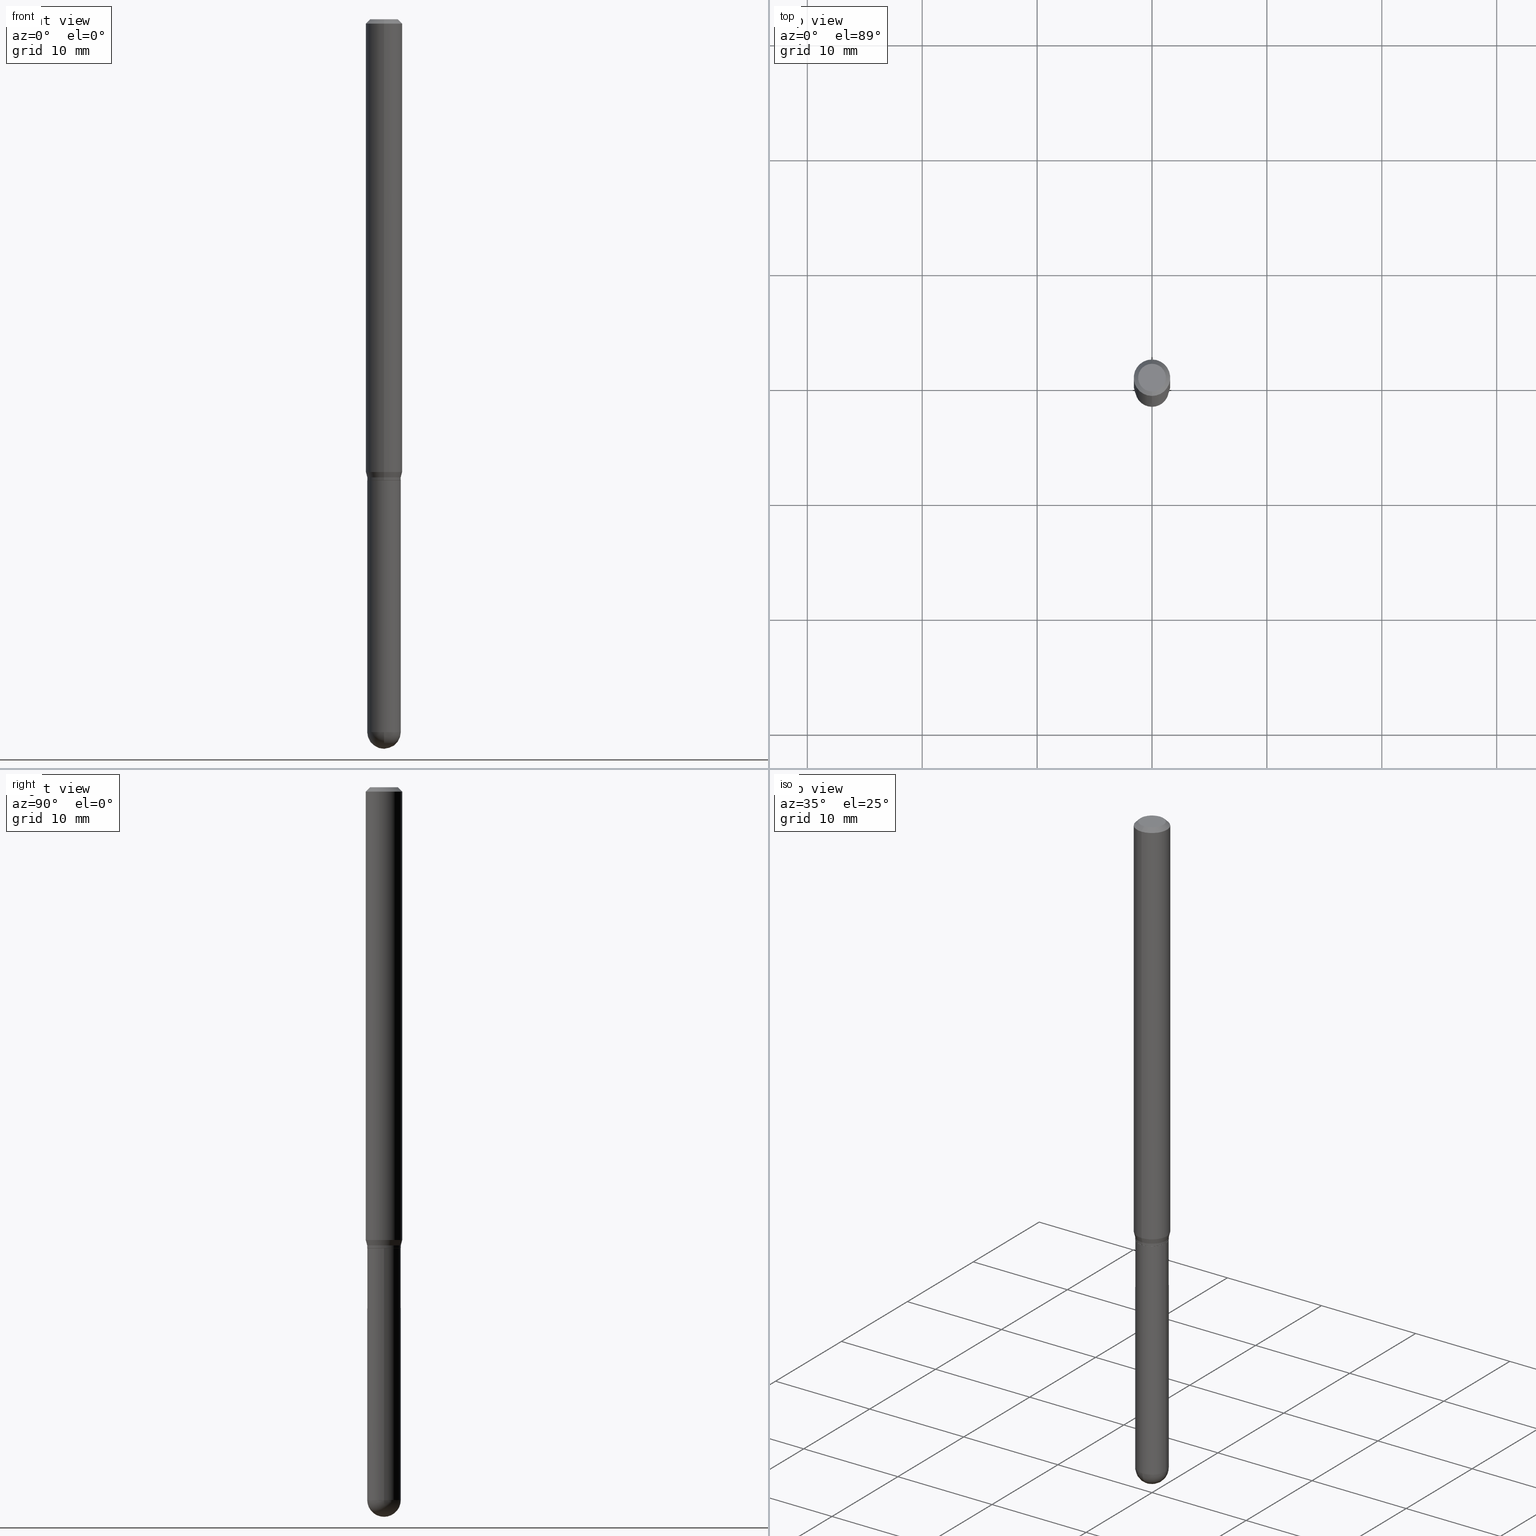
[diagram: canonical four-view strip — front | top / right | iso, engineering-drawing reading convention]
A machine part, canonical four-view strip (front | top / right | iso — engineering-drawing reading convention). The complete STEP part file that produces these views, byte-faithful:
ISO-10303-21;
HEADER;
FILE_DESCRIPTION (( 'STEP AP203' ),
    '1' );
FILE_NAME ('01004.STEP',
    '2024-03-07T19:40:38',
    ( '' ),
    ( '' ),
    'SwSTEP 2.0',
    'SolidWorks 2023',
    '' );
FILE_SCHEMA (( 'CONFIG_CONTROL_DESIGN' ));
ENDSEC;

DATA;
#1 = DIRECTION ( 'NONE',  ( -2.445559636082380444E-29, 3.491351265260575738E-15, 1.000000000000000000 ) ) ;
#2 = ORIENTED_EDGE ( 'NONE', *, *, #239, .F. ) ;
#3 = APPROVAL_DATE_TIME ( #238, #248 ) ;
#4 = DIRECTION ( 'NONE',  ( -2.445559636082380444E-29, 3.491351265260575738E-15, 1.000000000000000000 ) ) ;
#5 = LINE ( 'NONE', #168, #262 ) ;
#6 = AXIS2_PLACEMENT_3D ( 'NONE', #333, #491, #452 ) ;
#7 = AXIS2_PLACEMENT_3D ( 'NONE', #485, #64, #208 ) ;
#8 = DIRECTION ( 'NONE',  ( 1.000000000000000000, -6.982962677686265922E-15, 4.876176775795935232E-29 ) ) ;
#9 = EDGE_LOOP ( 'NONE', ( #494, #468, #295, #37 ) ) ;
#10 = CARTESIAN_POINT ( 'NONE',  ( 3.668339454123573048E-31, -5.237026897890866417E-17, -0.01500000000000000812 ) ) ;
#11 = DIRECTION ( 'NONE',  ( -2.445559636082380444E-29, 3.491351265260575738E-15, 1.000000000000000000 ) ) ;
#12 = VERTEX_POINT ( 'NONE', #148 ) ;
#13 = DIRECTION ( 'NONE',  ( -1.807323732225508027E-15, -0.2588190451025436656, 0.9659258262890620950 ) ) ;
#14 = ORIENTED_EDGE ( 'NONE', *, *, #303, .T. ) ;
#15 = LOCAL_TIME ( 14, 40, 38.00000000000000000, #320 ) ;
#16 = ORIENTED_EDGE ( 'NONE', *, *, #305, .F. ) ;
#17 = CLOSED_SHELL ( 'NONE', ( #405, #60, #19, #80, #457 ) ) ;
#18 = AXIS2_PLACEMENT_3D ( 'NONE', #355, #138, #51 ) ;
#19 = ADVANCED_FACE ( 'NONE', ( #71 ), #221, .F. ) ;
#20 = DIRECTION ( 'NONE',  ( 1.000000000000000000, -6.982962677686273810E-15, 0.000000000000000000 ) ) ;
#21 = DIRECTION ( 'NONE',  ( -4.937700262167370586E-15, -0.7071067811869493624, 0.7071067811861454500 ) ) ;
#22 = ORIENTED_EDGE ( 'NONE', *, *, #210, .F. ) ;
#23 = VERTEX_POINT ( 'NONE', #66 ) ;
#24 = ORIENTED_EDGE ( 'NONE', *, *, #246, .T. ) ;
#25 = ADVANCED_FACE ( 'NONE', ( #458 ), #376, .F. ) ;
#26 = CIRCLE ( 'NONE', #153, 0.05700000000000000205 ) ;
#27 = AXIS2_PLACEMENT_3D ( 'NONE', #301, #253, #62 ) ;
#28 = CIRCLE ( 'NONE', #7, 0.05750000000000019679 ) ;
#29 = ADVANCED_FACE ( 'NONE', ( #289 ), #258, .T. ) ;
#30 = PLANE ( 'NONE',  #77 ) ;
#31 = CC_DESIGN_PERSON_AND_ORGANIZATION_ASSIGNMENT ( #399, #50, ( #232 ) ) ;
#32 = VERTEX_POINT ( 'NONE', #380 ) ;
#33 = MANIFOLD_SOLID_BREP ( 'Body-Move/Copy2[1]', #17 ) ;
#34 = CALENDAR_DATE ( 2024, 7, 3 ) ;
#35 = ORIENTED_EDGE ( 'NONE', *, *, #255, .T. ) ;
#36 = DIRECTION ( 'NONE',  ( 1.000000000000000000, -6.982962677686273810E-15, 0.000000000000000000 ) ) ;
#37 = ORIENTED_EDGE ( 'NONE', *, *, #96, .F. ) ;
#38 = CARTESIAN_POINT ( 'NONE',  ( 5.968140352944414042E-29, -8.534984889219480121E-15, -2.442499999999999893 ) ) ;
#39 = APPROVAL_STATUS ( 'not_yet_approved' ) ;
#40 = DIRECTION ( 'NONE',  ( 4.937700262164548042E-15, 0.7071067811865451302, -0.7071067811865499042 ) ) ;
#41 = CARTESIAN_POINT ( 'NONE',  ( 0.000000000000000000, 0.000000000000000000, 0.000000000000000000 ) ) ;
#42 = AXIS2_PLACEMENT_3D ( 'NONE', #48, #482, #204 ) ;
#43 = ORIENTED_EDGE ( 'NONE', *, *, #109, .T. ) ;
#44 = APPROVAL_ROLE ( '' ) ;
#45 = DIRECTION ( 'NONE',  ( -2.445468806185136597E-29, 3.491481338843145583E-15, 1.000000000000000000 ) ) ;
#46 = EDGE_CURVE ( 'NONE', #299, #439, #379, .T. ) ;
#47 = CARTESIAN_POINT ( 'NONE',  ( 4.440892098501006787E-16, 0.06249999999999460154, -1.551339745962156513 ) ) ;
#48 = CARTESIAN_POINT ( 'NONE',  ( 3.863984225010160714E-29, -5.516334999111708829E-15, -1.579999999999999849 ) ) ;
#49 = ORIENTED_EDGE ( 'NONE', *, *, #192, .T. ) ;
#50 = PERSON_AND_ORGANIZATION_ROLE ( 'design_supplier' ) ;
#51 = DIRECTION ( 'NONE',  ( -6.982962677686266711E-15, -1.000000000000000000, 3.491351265260575738E-15 ) ) ;
#52 = CARTESIAN_POINT ( 'NONE',  ( 3.839528628649336660E-29, -5.481421486459103522E-15, -1.569999999999999840 ) ) ;
#53 = AXIS2_PLACEMENT_3D ( 'NONE', #322, #447, #252 ) ;
#54 = AXIS2_PLACEMENT_3D ( 'NONE', #315, #472, #190 ) ;
#55 = CC_DESIGN_PERSON_AND_ORGANIZATION_ASSIGNMENT ( #307, #430, ( #508 ) ) ;
#56 = APPLICATION_PROTOCOL_DEFINITION ( 'international standard', 'config_control_design', 1994, #406 ) ;
#57 = DIRECTION ( 'NONE',  ( -2.445559636082380444E-29, 3.491351265260575738E-15, 1.000000000000000000 ) ) ;
#58 = CARTESIAN_POINT ( 'NONE',  ( 3.862761445192120857E-29, -5.514589323479080576E-15, -1.579500000000000126 ) ) ;
#59 = ORIENTED_EDGE ( 'NONE', *, *, #352, .T. ) ;
#60 = ADVANCED_FACE ( 'NONE', ( #144 ), #415, .T. ) ;
#61 = DIRECTION ( 'NONE',  ( -2.445559636082380444E-29, 3.491351265260575738E-15, 1.000000000000000000 ) ) ;
#62 = DIRECTION ( 'NONE',  ( 6.982962677686265922E-15, 1.000000000000000000, -3.491351265260575738E-15 ) ) ;
#63 = LINE ( 'NONE', #481, #339 ) ;
#64 = DIRECTION ( 'NONE',  ( -2.445559636082380444E-29, 3.491351265260575738E-15, 1.000000000000000000 ) ) ;
#65 = MECHANICAL_CONTEXT ( 'NONE', #406, 'mechanical' ) ;
#66 = CARTESIAN_POINT ( 'NONE',  ( 4.085620730620980537E-16, 0.05749999999999475669, -1.579500000000000348 ) ) ;
#67 = CC_DESIGN_SECURITY_CLASSIFICATION ( #508, ( #232 ) ) ;
#68 = CIRCLE ( 'NONE', #257, 0.05750000000000007189 ) ;
#69 = ORIENTED_EDGE ( 'NONE', *, *, #201, .T. ) ;
#70 = DIRECTION ( 'NONE',  ( 6.982962677686266711E-15, 1.000000000000000000, -4.751039988981321814E-15 ) ) ;
#71 = FACE_OUTER_BOUND ( 'NONE', #105, .T. ) ;
#72 = EDGE_LOOP ( 'NONE', ( #456, #277, #35, #296, #200 ) ) ;
#73 = CONICAL_SURFACE ( 'NONE', #345, 0.05749999999999964861, 0.2617993877991766638 ) ;
#74 = APPROVAL_ROLE ( '' ) ;
#75 = DIRECTION ( 'NONE',  ( -6.982962677686265922E-15, -1.000000000000000000, 3.491351265260575738E-15 ) ) ;
#76 = AXIS2_PLACEMENT_3D ( 'NONE', #218, #477, #435 ) ;
#77 = AXIS2_PLACEMENT_3D ( 'NONE', #151, #245, #404 ) ;
#78 = DATE_AND_TIME ( #357, #453 ) ;
#79 = CARTESIAN_POINT ( 'NONE',  ( 3.668339454123573048E-31, -5.237026897890866417E-17, -0.01500000000000000812 ) ) ;
#80 = ADVANCED_FACE ( 'NONE', ( #486 ), #101, .T. ) ;
#81 = CALENDAR_DATE ( 2024, 7, 3 ) ;
#82 = ORIENTED_EDGE ( 'NONE', *, *, #46, .F. ) ;
#83 = CARTESIAN_POINT ( 'NONE',  ( 2.168354983497660844E-46, -3.095605931448901253E-32, -8.866498087003175706E-18 ) ) ;
#84 = DATE_AND_TIME ( #34, #378 ) ;
#85 = AXIS2_PLACEMENT_3D ( 'NONE', #323, #400, #326 ) ;
#86 = CARTESIAN_POINT ( 'NONE',  ( 5.968140352944414042E-29, -8.534984889219480121E-15, -2.442499999999999893 ) ) ;
#87 = COORDINATED_UNIVERSAL_TIME_OFFSET ( 5, 0, .BEHIND. ) ;
#88 = DIRECTION ( 'NONE',  ( -6.982962677686265922E-15, -1.000000000000000000, 3.483106191921935554E-15 ) ) ;
#89 = DIRECTION ( 'NONE',  ( 1.000000000000000000, 0.000000000000000000, 0.000000000000000000 ) ) ;
#90 = DIRECTION ( 'NONE',  ( 6.982962677686265922E-15, 1.000000000000000000, 0.000000000000000000 ) ) ;
#91 = PERSON_AND_ORGANIZATION ( #503, #280 ) ;
#92 = DIRECTION ( 'NONE',  ( -2.445468806185136877E-29, 3.491481338843145188E-15, 1.000000000000000000 ) ) ;
#93 = LINE ( 'NONE', #431, #402 ) ;
#94 = APPROVAL ( #507, 'UNSPECIFIED' ) ;
#95 = FACE_OUTER_BOUND ( 'NONE', #72, .T. ) ;
#96 = EDGE_CURVE ( 'NONE', #250, #459, #136, .T. ) ;
#97 = APPROVAL_PERSON_ORGANIZATION ( #91, #94, #44 ) ;
#98 = AXIS2_PLACEMENT_3D ( 'NONE', #408, #173, #219 ) ;
#99 = VECTOR ( 'NONE', #40, 39.37007874015748143 ) ;
#100 = LINE ( 'NONE', #434, #154 ) ;
#101 = SPHERICAL_SURFACE ( 'NONE', #312, 0.05750000000000007189 ) ;
#102 = CARTESIAN_POINT ( 'NONE',  ( 3.793893864575343758E-29, -5.416271984913994824E-15, -1.551339745962156291 ) ) ;
#103 = CARTESIAN_POINT ( 'NONE',  ( -3.980288726280785069E-16, -0.05700000000000551154, -1.579999999999999627 ) ) ;
#104 = ADVANCED_FACE ( 'NONE', ( #180 ), #225, .T. ) ;
#105 = EDGE_LOOP ( 'NONE', ( #337, #43 ) ) ;
#106 = APPROVAL_PERSON_ORGANIZATION ( #344, #429, #74 ) ;
#107 = AXIS2_PLACEMENT_3D ( 'NONE', #79, #282, #403 ) ;
#108 = ORIENTED_EDGE ( 'NONE', *, *, #214, .T. ) ;
#109 = EDGE_CURVE ( 'NONE', #237, #382, #297, .T. ) ;
#110 = CARTESIAN_POINT ( 'NONE',  ( 3.863984225010160714E-29, -5.516334999111708829E-15, -1.579999999999999849 ) ) ;
#111 = CARTESIAN_POINT ( 'NONE',  ( 0.000000000000000000, 0.000000000000000000, 0.000000000000000000 ) ) ;
#112 = ORIENTED_EDGE ( 'NONE', *, *, #427, .T. ) ;
#113 = AXIS2_PLACEMENT_3D ( 'NONE', #276, #470, #438 ) ;
#114 = ADVANCED_FACE ( 'NONE', ( #126 ), #465, .T. ) ;
#115 = COORDINATED_UNIVERSAL_TIME_OFFSET ( 5, 0, .BEHIND. ) ;
#116 = CARTESIAN_POINT ( 'NONE',  ( 4.364351673553919652E-16, 0.06249999999999995143, -0.01500000000000022669 ) ) ;
#117 = ORIENTED_EDGE ( 'NONE', *, *, #462, .F. ) ;
#118 = CALENDAR_DATE ( 2024, 7, 3 ) ;
#119 = CARTESIAN_POINT ( 'NONE',  ( 4.067857162226966677E-16, 0.05699999999999448563, -1.580000000000000071 ) ) ;
#120 = AXIS2_PLACEMENT_3D ( 'NONE', #41, #164, #89 ) ;
#121 = EDGE_LOOP ( 'NONE', ( #213, #374, #182, #489 ) ) ;
#122 = VERTEX_POINT ( 'NONE', #235 ) ;
#123 = PRODUCT_DEFINITION ( 'UNKNOWN', '', #232, #389 ) ;
#124 = DIRECTION ( 'NONE',  ( -6.982962677686265922E-15, -1.000000000000000000, 3.483106191921935554E-15 ) ) ;
#125 = CARTESIAN_POINT ( 'NONE',  ( 3.840629472727447874E-16, 0.04749999999999999362, -1.747056831868805136E-16 ) ) ;
#126 = FACE_OUTER_BOUND ( 'NONE', #9, .T. ) ;
#127 = PERSON_AND_ORGANIZATION ( #503, #280 ) ;
#128 = CARTESIAN_POINT ( 'NONE',  ( 4.440892098500625669E-16, 0.06250000000000000000, -2.182094540787859836E-16 ) ) ;
#129 = VECTOR ( 'NONE', #1, 39.37007874015748143 ) ;
#130 = ORIENTED_EDGE ( 'NONE', *, *, #460, .F. ) ;
#131 = DIRECTION ( 'NONE',  ( -2.445559636082380444E-29, 3.491351265260575738E-15, 1.000000000000000000 ) ) ;
#132 = CYLINDRICAL_SURFACE ( 'NONE', #147, 0.06250000000000000000 ) ;
#133 = LINE ( 'NONE', #483, #222 ) ;
#134 = ADVANCED_FACE ( 'NONE', ( #324 ), #328, .T. ) ;
#135 = CARTESIAN_POINT ( 'NONE',  ( -4.085620730619980656E-16, -0.05750000000000857203, -2.442499999999999893 ) ) ;
#136 = LINE ( 'NONE', #103, #412 ) ;
#137 = CIRCLE ( 'NONE', #298, 0.06250000000000000000 ) ;
#138 = DIRECTION ( 'NONE',  ( -2.445559636082380444E-29, 3.491351265260575738E-15, 1.000000000000000000 ) ) ;
#139 = EDGE_CURVE ( 'NONE', #299, #12, #5, .T. ) ;
#140 = EDGE_LOOP ( 'NONE', ( #366, #446 ) ) ;
#141 = DIRECTION ( 'NONE',  ( -1.000000000000000000, 6.982962677686266711E-15, -4.883557194083112901E-29 ) ) ;
#142 = EDGE_CURVE ( 'NONE', #505, #439, #93, .T. ) ;
#143 = ORIENTED_EDGE ( 'NONE', *, *, #266, .F. ) ;
#144 = FACE_OUTER_BOUND ( 'NONE', #264, .T. ) ;
#145 = EDGE_CURVE ( 'NONE', #442, #505, #271, .T. ) ;
#146 = ORIENTED_EDGE ( 'NONE', *, *, #217, .F. ) ;
#147 = AXIS2_PLACEMENT_3D ( 'NONE', #409, #57, #167 ) ;
#148 = CARTESIAN_POINT ( 'NONE',  ( -4.364351673553912750E-16, -0.06250000000000005551, -0.01499999999999979128 ) ) ;
#149 = DIRECTION ( 'NONE',  ( -2.445559636082380444E-29, 3.491351265260575738E-15, 1.000000000000000000 ) ) ;
#150 = EDGE_LOOP ( 'NONE', ( #2, #108, #224, #493 ) ) ;
#151 = CARTESIAN_POINT ( 'NONE',  ( 3.863984225010161275E-29, -5.516334999111708829E-15, -1.580000000000000071 ) ) ;
#152 = EDGE_CURVE ( 'NONE', #459, #23, #28, .T. ) ;
#153 = AXIS2_PLACEMENT_3D ( 'NONE', #110, #342, #413 ) ;
#154 = VECTOR ( 'NONE', #13, 39.37007874015748854 ) ;
#155 = CARTESIAN_POINT ( 'NONE',  ( -4.015203539669597738E-16, -0.05749999999999992617, 2.007526977524828367E-16 ) ) ;
#156 = DIRECTION ( 'NONE',  ( -7.105427357601000281E-15, -1.000000000000000000, 0.000000000000000000 ) ) ;
#157 = CARTESIAN_POINT ( 'NONE',  ( 3.839528628649336660E-29, -5.481421486459103522E-15, -1.569999999999999840 ) ) ;
#158 = APPROVAL_PERSON_ORGANIZATION ( #161, #248, #310 ) ;
#159 = CIRCLE ( 'NONE', #444, 0.05750000000000000250 ) ;
#160 = DIRECTION ( 'NONE',  ( 1.000000000000000000, -6.982962677686273810E-15, 0.000000000000000000 ) ) ;
#161 = PERSON_AND_ORGANIZATION ( #503, #280 ) ;
#162 = CARTESIAN_POINT ( 'NONE',  ( -4.287811248607203282E-16, -0.06250000000000005551, -0.01499999999999979128 ) ) ;
#163 = CYLINDRICAL_SURFACE ( 'NONE', #198, 0.05750000000000000250 ) ;
#164 = DIRECTION ( 'NONE',  ( 0.000000000000000000, 0.000000000000000000, 1.000000000000000000 ) ) ;
#165 = EDGE_CURVE ( 'NONE', #242, #300, #272, .T. ) ;
#166 = APPROVAL_DATE_TIME ( #78, #94 ) ;
#167 = DIRECTION ( 'NONE',  ( -6.982962677686265922E-15, -1.000000000000000000, 3.491351265260575738E-15 ) ) ;
#168 = CARTESIAN_POINT ( 'NONE',  ( -4.364351673553916201E-16, -0.06250000000000000000, 2.182094540787859836E-16 ) ) ;
#169 = CIRCLE ( 'NONE', #205, 0.04749999999999999362 ) ;
#170 = CARTESIAN_POINT ( 'NONE',  ( -4.015203539669225001E-16, -0.05750000000000563688, -1.579499999999999904 ) ) ;
#171 = DIRECTION ( 'NONE',  ( -2.445559636082380444E-29, 3.491351265260575738E-15, 1.000000000000000000 ) ) ;
#172 = CARTESIAN_POINT ( 'NONE',  ( -4.015203539669194433E-16, -0.05750000000000513034, -1.569999999999999618 ) ) ;
#173 = DIRECTION ( 'NONE',  ( 2.438088387897960049E-29, -3.491481338843145188E-15, -1.000000000000000000 ) ) ;
#174 = DIRECTION ( 'NONE',  ( 1.000000000000000000, -6.982962677686265922E-15, 4.876176775795935232E-29 ) ) ;
#175 = CC_DESIGN_APPROVAL ( #248, ( #232 ) ) ;
#176 = VERTEX_POINT ( 'NONE', #332 ) ;
#177 = AXIS2_PLACEMENT_3D ( 'NONE', #418, #294, #70 ) ;
#178 = AXIS2_PLACEMENT_3D ( 'NONE', #86, #436, #90 ) ;
#179 = PRODUCT ( '01004', '01004', '', ( #65 ) ) ;
#180 = FACE_OUTER_BOUND ( 'NONE', #304, .T. ) ;
#181 = ORIENTED_EDGE ( 'NONE', *, *, #145, .F. ) ;
#182 = ORIENTED_EDGE ( 'NONE', *, *, #139, .T. ) ;
#183 = CIRCLE ( 'NONE', #194, 0.05749999999999964861 ) ;
#184 = AXIS2_PLACEMENT_3D ( 'NONE', #370, #215, #20 ) ;
#185 = ADVANCED_FACE ( 'NONE', ( #384 ), #30, .F. ) ;
#186 = ORIENTED_EDGE ( 'NONE', *, *, #251, .F. ) ;
#187 = EDGE_CURVE ( 'NONE', #23, #459, #371, .T. ) ;
#188 = ORIENTED_EDGE ( 'NONE', *, *, #145, .T. ) ;
#189 = VECTOR ( 'NONE', #388, 39.37007874015748854 ) ;
#190 = DIRECTION ( 'NONE',  ( 1.000000000000000000, -6.982962677686273810E-15, 0.000000000000000000 ) ) ;
#191 = APPROVAL_DATE_TIME ( #267, #429 ) ;
#192 = EDGE_CURVE ( 'NONE', #419, #12, #195, .T. ) ;
#193 = ORIENTED_EDGE ( 'NONE', *, *, #239, .T. ) ;
#194 = AXIS2_PLACEMENT_3D ( 'NONE', #335, #149, #196 ) ;
#195 = LINE ( 'NONE', #162, #288 ) ;
#196 = DIRECTION ( 'NONE',  ( -6.982962677686265922E-15, -1.000000000000000000, 4.751039988981356524E-15 ) ) ;
#197 = AXIS2_PLACEMENT_3D ( 'NONE', #331, #212, #327 ) ;
#198 = AXIS2_PLACEMENT_3D ( 'NONE', #211, #284, #174 ) ;
#199 = DIRECTION ( 'NONE',  ( -2.445468806185136597E-29, 3.491481338843145583E-15, 1.000000000000000000 ) ) ;
#200 = ORIENTED_EDGE ( 'NONE', *, *, #109, .F. ) ;
#201 = EDGE_CURVE ( 'NONE', #12, #176, #425, .T. ) ;
#202 = DIRECTION ( 'NONE',  ( 1.000000000000000000, -6.982962677686273810E-15, 0.000000000000000000 ) ) ;
#203 = ADVANCED_BREP_SHAPE_REPRESENTATION ( '01004', ( #33, #372, #120 ), #443 ) ;
#204 = DIRECTION ( 'NONE',  ( -6.982962677686265922E-15, -1.000000000000000000, 4.792715778358356274E-15 ) ) ;
#205 = AXIS2_PLACEMENT_3D ( 'NONE', #83, #475, #281 ) ;
#206 = DIRECTION ( 'NONE',  ( -2.445559636082380444E-29, 3.491351265260575738E-15, 1.000000000000000000 ) ) ;
#207 =( CONVERSION_BASED_UNIT ( 'INCH', #488 ) LENGTH_UNIT ( ) NAMED_UNIT ( #500 ) );
#208 = DIRECTION ( 'NONE',  ( -6.982962677686265922E-15, -1.000000000000000000, 4.751039988981310770E-15 ) ) ;
#209 = ORIENTED_EDGE ( 'NONE', *, *, #214, .F. ) ;
#210 = EDGE_CURVE ( 'NONE', #419, #256, #169, .T. ) ;
#211 = CARTESIAN_POINT ( 'NONE',  ( 0.000000000000000000, 0.000000000000000000, 0.000000000000000000 ) ) ;
#212 = DIRECTION ( 'NONE',  ( -2.445559636082380444E-29, 3.491351265260575738E-15, 1.000000000000000000 ) ) ;
#213 = ORIENTED_EDGE ( 'NONE', *, *, #350, .F. ) ;
#214 = EDGE_CURVE ( 'NONE', #32, #230, #455, .T. ) ;
#215 = DIRECTION ( 'NONE',  ( -2.445468806185136597E-29, 3.491481338843145583E-15, 1.000000000000000000 ) ) ;
#216 = ORIENTED_EDGE ( 'NONE', *, *, #266, .T. ) ;
#217 = EDGE_CURVE ( 'NONE', #382, #237, #495, .T. ) ;
#218 = CARTESIAN_POINT ( 'NONE',  ( 3.863840713772516137E-29, -5.516540515372169792E-15, -1.580000000000000071 ) ) ;
#219 = DIRECTION ( 'NONE',  ( -1.000000000000000000, 6.982962677686265922E-15, -4.876176775795935793E-29 ) ) ;
#220 = APPLICATION_CONTEXT ( 'configuration controlled 3d designs of mechanical parts and assemblies' ) ;
#221 = PLANE ( 'NONE',  #98 ) ;
#222 = VECTOR ( 'NONE', #441, 39.37007874015748143 ) ;
#223 = CONICAL_SURFACE ( 'NONE', #107, 0.06250000000000000000, 0.7853981633974483900 ) ;
#224 = ORIENTED_EDGE ( 'NONE', *, *, #227, .F. ) ;
#225 = CONICAL_SURFACE ( 'NONE', #6, 0.05700000000000000205, 0.7853981633980202659 ) ;
#226 = CIRCLE ( 'NONE', #54, 0.05750000000000000250 ) ;
#227 = EDGE_CURVE ( 'NONE', #122, #230, #226, .T. ) ;
#228 = LINE ( 'NONE', #275, #189 ) ;
#229 = PERSON_AND_ORGANIZATION ( #503, #280 ) ;
#230 = VERTEX_POINT ( 'NONE', #394 ) ;
#231 = EDGE_CURVE ( 'NONE', #459, #442, #346, .T. ) ;
#232 = PRODUCT_DEFINITION_FORMATION_WITH_SPECIFIED_SOURCE ( 'ANY', '', #179, .NOT_KNOWN. ) ;
#233 = PERSON_AND_ORGANIZATION ( #503, #280 ) ;
#234 = AXIS2_PLACEMENT_3D ( 'NONE', #58, #131, #243 ) ;
#235 = CARTESIAN_POINT ( 'NONE',  ( 0.05750000000000000250, -7.423762196715237777E-15, -2.442499999999999893 ) ) ;
#236 = LINE ( 'NONE', #291, #479 ) ;
#237 = VERTEX_POINT ( 'NONE', #392 ) ;
#238 = DATE_AND_TIME ( #353, #461 ) ;
#239 = EDGE_CURVE ( 'NONE', #32, #300, #68, .T. ) ;
#240 = FACE_OUTER_BOUND ( 'NONE', #474, .T. ) ;
#241 = DIRECTION ( 'NONE',  ( 1.839019923739781359E-15, 0.2588190451025504379, 0.9659258262890602076 ) ) ;
#242 = VERTEX_POINT ( 'NONE', #349 ) ;
#243 = DIRECTION ( 'NONE',  ( -6.982962677686265922E-15, -1.000000000000000000, 4.751039988981310770E-15 ) ) ;
#244 = CYLINDRICAL_SURFACE ( 'NONE', #268, 0.05750000000000000250 ) ;
#245 = DIRECTION ( 'NONE',  ( -2.445559636082380163E-29, 3.491351265260575738E-15, 1.000000000000000000 ) ) ;
#246 = EDGE_CURVE ( 'NONE', #256, #176, #308, .T. ) ;
#247 = AXIS2_PLACEMENT_3D ( 'NONE', #52, #61, #499 ) ;
#248 = APPROVAL ( #39, 'UNSPECIFIED' ) ;
#249 = CARTESIAN_POINT ( 'NONE',  ( 3.668339454123573048E-31, -5.237026897890866417E-17, -0.01500000000000000812 ) ) ;
#250 = VERTEX_POINT ( 'NONE', #424 ) ;
#251 = EDGE_CURVE ( 'NONE', #286, #23, #228, .T. ) ;
#252 = DIRECTION ( 'NONE',  ( -6.982962677686265922E-15, -1.000000000000000000, 4.792715778358356274E-15 ) ) ;
#253 = DIRECTION ( 'NONE',  ( 2.445559636082380163E-29, -3.491351265260575738E-15, -1.000000000000000000 ) ) ;
#254 = EDGE_LOOP ( 'NONE', ( #309, #432 ) ) ;
#255 = EDGE_CURVE ( 'NONE', #300, #122, #393, .T. ) ;
#256 = VERTEX_POINT ( 'NONE', #125 ) ;
#257 = AXIS2_PLACEMENT_3D ( 'NONE', #38, #428, #156 ) ;
#258 = CYLINDRICAL_SURFACE ( 'NONE', #306, 0.06250000000000000000 ) ;
#259 = DIRECTION ( 'NONE',  ( -2.445559636082380444E-29, 3.491351265260575738E-15, 1.000000000000000000 ) ) ;
#260 = ORIENTED_EDGE ( 'NONE', *, *, #246, .F. ) ;
#261 = CYLINDRICAL_SURFACE ( 'NONE', #423, 0.05749999999999992617 ) ;
#262 = VECTOR ( 'NONE', #512, 39.37007874015748143 ) ;
#263 = AXIS2_PLACEMENT_3D ( 'NONE', #102, #206, #407 ) ;
#264 = EDGE_LOOP ( 'NONE', ( #209, #193, #351, #143 ) ) ;
#265 = UNCERTAINTY_MEASURE_WITH_UNIT (LENGTH_MEASURE( 1.000000000000000082E-05 ), #207, 'distance_accuracy_value', 'NONE');
#266 = EDGE_CURVE ( 'NONE', #230, #242, #159, .T. ) ;
#267 = DATE_AND_TIME ( #118, #401 ) ;
#268 = AXIS2_PLACEMENT_3D ( 'NONE', #362, #445, #8 ) ;
#269 = ADVANCED_FACE ( 'NONE', ( #501 ), #73, .T. ) ;
#270 = ORIENTED_EDGE ( 'NONE', *, *, #187, .T. ) ;
#271 = CIRCLE ( 'NONE', #247, 0.05749999999999964861 ) ;
#272 = CIRCLE ( 'NONE', #184, 0.05750000000000000250 ) ;
#273 = FACE_OUTER_BOUND ( 'NONE', #397, .T. ) ;
#274 = DATE_TIME_ROLE ( 'creation_date' ) ;
#275 = CARTESIAN_POINT ( 'NONE',  ( 4.050093593832956761E-16, 0.05699999999999448563, -1.580000000000000071 ) ) ;
#276 = CARTESIAN_POINT ( 'NONE',  ( 3.839528628649336660E-29, -5.481421486459103522E-15, -1.569999999999999840 ) ) ;
#277 = ORIENTED_EDGE ( 'NONE', *, *, #165, .T. ) ;
#278 = COORDINATED_UNIVERSAL_TIME_OFFSET ( 5, 0, .BEHIND. ) ;
#279 = CARTESIAN_POINT ( 'NONE',  ( 5.973057559107196227E-29, -8.527943170124383355E-15, -2.442499999999999893 ) ) ;
#280 = ORGANIZATION ( 'UNSPECIFIED', 'UNSPECIFIED', '' ) ;
#281 = DIRECTION ( 'NONE',  ( -6.982962677686266711E-15, -1.000000000000000000, 3.491351265260575738E-15 ) ) ;
#282 = DIRECTION ( 'NONE',  ( 2.445559636082380444E-29, -3.491351265260575738E-15, -1.000000000000000000 ) ) ;
#283 = PERSON_AND_ORGANIZATION_ROLE ( 'creator' ) ;
#284 = DIRECTION ( 'NONE',  ( -2.445468806185136597E-29, 3.491481338843145583E-15, 1.000000000000000000 ) ) ;
#285 = FACE_OUTER_BOUND ( 'NONE', #450, .T. ) ;
#286 = VERTEX_POINT ( 'NONE', #119 ) ;
#287 = FACE_OUTER_BOUND ( 'NONE', #387, .T. ) ;
#288 = VECTOR ( 'NONE', #364, 39.37007874015748143 ) ;
#289 = FACE_OUTER_BOUND ( 'NONE', #121, .T. ) ;
#290 =( NAMED_UNIT ( * ) SI_UNIT ( $, .STERADIAN. ) SOLID_ANGLE_UNIT ( ) );
#291 = CARTESIAN_POINT ( 'NONE',  ( 4.085620730620570330E-16, 0.05749999999999992617, -2.007526977524828367E-16 ) ) ;
#292 = ADVANCED_FACE ( 'NONE', ( #273 ), #223, .T. ) ;
#293 = CARTESIAN_POINT ( 'NONE',  ( 5.968140352944414042E-29, -8.534984889219480121E-15, -2.442499999999999893 ) ) ;
#294 = DIRECTION ( 'NONE',  ( -1.000000000000000000, 6.982962677686266711E-15, -4.883557194083112901E-29 ) ) ;
#295 = ORIENTED_EDGE ( 'NONE', *, *, #152, .F. ) ;
#296 = ORIENTED_EDGE ( 'NONE', *, *, #460, .T. ) ;
#297 = CIRCLE ( 'NONE', #76, 0.05750000000000000250 ) ;
#298 = AXIS2_PLACEMENT_3D ( 'NONE', #249, #4, #88 ) ;
#299 = VERTEX_POINT ( 'NONE', #484 ) ;
#300 = VERTEX_POINT ( 'NONE', #135 ) ;
#301 = CARTESIAN_POINT ( 'NONE',  ( 3.316907271900976096E-16, 0.04749999999999999362, -1.702724341433789350E-16 ) ) ;
#302 = ORIENTED_EDGE ( 'NONE', *, *, #187, .F. ) ;
#303 = EDGE_CURVE ( 'NONE', #442, #299, #100, .T. ) ;
#304 = EDGE_LOOP ( 'NONE', ( #186, #112, #325, #302 ) ) ;
#305 = EDGE_CURVE ( 'NONE', #256, #419, #321, .T. ) ;
#306 = AXIS2_PLACEMENT_3D ( 'NONE', #111, #259, #420 ) ;
#307 = PERSON_AND_ORGANIZATION ( #503, #280 ) ;
#308 = LINE ( 'NONE', #116, #99 ) ;
#309 = ORIENTED_EDGE ( 'NONE', *, *, #473, .F. ) ;
#310 = APPROVAL_ROLE ( '' ) ;
#311 = DIRECTION ( 'NONE',  ( -2.445559636082380444E-29, 3.491351265260575738E-15, 1.000000000000000000 ) ) ;
#312 = AXIS2_PLACEMENT_3D ( 'NONE', #293, #141, #448 ) ;
#313 = AXIS2_PLACEMENT_3D ( 'NONE', #509, #199, #160 ) ;
#314 = PERSON_AND_ORGANIZATION_ROLE ( 'creator' ) ;
#315 = CARTESIAN_POINT ( 'NONE',  ( 5.973057559107196227E-29, -8.527943170124383355E-15, -2.442499999999999893 ) ) ;
#316 = APPLICATION_PROTOCOL_DEFINITION ( 'international standard', 'config_control_design', 1994, #220 ) ;
#317 = PRODUCT_RELATED_PRODUCT_CATEGORY ( 'detail', '', ( #179 ) ) ;
#318 = LINE ( 'NONE', #128, #129 ) ;
#319 = CC_DESIGN_APPROVAL ( #94, ( #123 ) ) ;
#320 = COORDINATED_UNIVERSAL_TIME_OFFSET ( 5, 0, .BEHIND. ) ;
#321 = CIRCLE ( 'NONE', #18, 0.04749999999999999362 ) ;
#322 = CARTESIAN_POINT ( 'NONE',  ( 3.863984225010160714E-29, -5.516334999111708829E-15, -1.579999999999999849 ) ) ;
#323 = CARTESIAN_POINT ( 'NONE',  ( 3.668339454123573048E-31, -5.237026897890866417E-17, -0.01500000000000000812 ) ) ;
#324 = FACE_OUTER_BOUND ( 'NONE', #373, .T. ) ;
#325 = ORIENTED_EDGE ( 'NONE', *, *, #96, .T. ) ;
#326 = DIRECTION ( 'NONE',  ( 6.982962677686265922E-15, 1.000000000000000000, -3.483106191921935554E-15 ) ) ;
#327 = DIRECTION ( 'NONE',  ( -6.982962677686265922E-15, -1.000000000000000000, 4.370956789862821150E-15 ) ) ;
#328 = CONICAL_SURFACE ( 'NONE', #113, 0.05749999999999964861, 0.2617993877991766638 ) ;
#329 = CARTESIAN_POINT ( 'NONE',  ( 0.000000000000000000, 0.000000000000000000, 0.000000000000000000 ) ) ;
#330 = CONICAL_SURFACE ( 'NONE', #85, 0.06250000000000000000, 0.7853981633974483900 ) ;
#331 = CARTESIAN_POINT ( 'NONE',  ( 3.793893864575343758E-29, -5.416271984913994824E-15, -1.551339745962156291 ) ) ;
#332 = CARTESIAN_POINT ( 'NONE',  ( 4.440892098501006787E-16, 0.06249999999999995143, -0.01500000000000022669 ) ) ;
#333 = CARTESIAN_POINT ( 'NONE',  ( 3.863984225010160714E-29, -5.516334999111708829E-15, -1.579999999999999849 ) ) ;
#334 = EDGE_LOOP ( 'NONE', ( #188, #369, #82, #360 ) ) ;
#335 = CARTESIAN_POINT ( 'NONE',  ( 3.839528628649336660E-29, -5.481421486459103522E-15, -1.569999999999999840 ) ) ;
#336 = EDGE_LOOP ( 'NONE', ( #363, #270, #383, #117 ) ) ;
#337 = ORIENTED_EDGE ( 'NONE', *, *, #217, .T. ) ;
#338 = EDGE_LOOP ( 'NONE', ( #216, #347, #146, #130, #416 ) ) ;
#339 = VECTOR ( 'NONE', #92, 39.37007874015748143 ) ;
#340 = ORIENTED_EDGE ( 'NONE', *, *, #139, .F. ) ;
#341 = ORIENTED_EDGE ( 'NONE', *, *, #354, .F. ) ;
#342 = DIRECTION ( 'NONE',  ( -2.445559636082380444E-29, 3.491351265260575738E-15, 1.000000000000000000 ) ) ;
#343 = DIRECTION ( 'NONE',  ( -2.445559636082380444E-29, 3.491351265260575738E-15, 1.000000000000000000 ) ) ;
#344 = PERSON_AND_ORGANIZATION ( #503, #280 ) ;
#345 = AXIS2_PLACEMENT_3D ( 'NONE', #157, #311, #464 ) ;
#346 = LINE ( 'NONE', #155, #502 ) ;
#347 = ORIENTED_EDGE ( 'NONE', *, *, #440, .T. ) ;
#348 = SHAPE_DEFINITION_REPRESENTATION ( #451, #203 ) ;
#349 = CARTESIAN_POINT ( 'NONE',  ( -0.05750000000000000250, -6.613679769686218604E-15, -2.442499999999999893 ) ) ;
#350 = EDGE_CURVE ( 'NONE', #439, #176, #318, .T. ) ;
#351 = ORIENTED_EDGE ( 'NONE', *, *, #165, .F. ) ;
#352 = EDGE_CURVE ( 'NONE', #176, #12, #137, .T. ) ;
#353 = CALENDAR_DATE ( 2024, 7, 3 ) ;
#354 = EDGE_CURVE ( 'NONE', #439, #299, #414, .T. ) ;
#355 = CARTESIAN_POINT ( 'NONE',  ( 2.168354983497660844E-46, -3.095605931448901253E-32, -8.866498087003175706E-18 ) ) ;
#356 = ORIENTED_EDGE ( 'NONE', *, *, #462, .T. ) ;
#357 = CALENDAR_DATE ( 2024, 7, 3 ) ;
#358 = CARTESIAN_POINT ( 'NONE',  ( 0.05750000000000000250, -5.918060869339130601E-15, -1.580000000000000071 ) ) ;
#359 = ADVANCED_FACE ( 'NONE', ( #285 ), #132, .T. ) ;
#360 = ORIENTED_EDGE ( 'NONE', *, *, #303, .F. ) ;
#361 = CC_DESIGN_PERSON_AND_ORGANIZATION_ASSIGNMENT ( #127, #395, ( #179 ) ) ;
#362 = CARTESIAN_POINT ( 'NONE',  ( 0.000000000000000000, 0.000000000000000000, 0.000000000000000000 ) ) ;
#363 = ORIENTED_EDGE ( 'NONE', *, *, #390, .F. ) ;
#364 = DIRECTION ( 'NONE',  ( -4.851104656540964275E-15, -0.7071067811865500152, -0.7071067811865450192 ) ) ;
#365 = FACE_OUTER_BOUND ( 'NONE', #338, .T. ) ;
#366 = ORIENTED_EDGE ( 'NONE', *, *, #305, .T. ) ;
#367 = CYLINDRICAL_SURFACE ( 'NONE', #386, 0.05749999999999992617 ) ;
#368 = ORIENTED_EDGE ( 'NONE', *, *, #192, .F. ) ;
#369 = ORIENTED_EDGE ( 'NONE', *, *, #142, .T. ) ;
#370 = CARTESIAN_POINT ( 'NONE',  ( 5.973057559107196227E-29, -8.527943170124383355E-15, -2.442499999999999893 ) ) ;
#371 = CIRCLE ( 'NONE', #234, 0.05750000000000019679 ) ;
#372 = MANIFOLD_SOLID_BREP ( 'Body-Move/Copy2[2]', #454 ) ;
#373 = EDGE_LOOP ( 'NONE', ( #377, #356, #14, #341 ) ) ;
#374 = ORIENTED_EDGE ( 'NONE', *, *, #354, .T. ) ;
#375 = CARTESIAN_POINT ( 'NONE',  ( 4.263256414560969750E-16, 0.05749999999999417383, -1.570000000000000284 ) ) ;
#376 = PLANE ( 'NONE',  #27 ) ;
#377 = ORIENTED_EDGE ( 'NONE', *, *, #142, .F. ) ;
#378 = LOCAL_TIME ( 14, 40, 38.00000000000000000, #278 ) ;
#379 = CIRCLE ( 'NONE', #197, 0.06250000000000000000 ) ;
#380 = CARTESIAN_POINT ( 'NONE',  ( 6.111213412381450399E-29, -8.732224206655412537E-15, -2.500000000000000000 ) ) ;
#381 = AXIS2_PLACEMENT_3D ( 'NONE', #511, #506, #36 ) ;
#382 = VERTEX_POINT ( 'NONE', #358 ) ;
#383 = ORIENTED_EDGE ( 'NONE', *, *, #231, .T. ) ;
#384 = FACE_OUTER_BOUND ( 'NONE', #254, .T. ) ;
#385 = CARTESIAN_POINT ( 'NONE',  ( 0.000000000000000000, 0.000000000000000000, 0.000000000000000000 ) ) ;
#386 = AXIS2_PLACEMENT_3D ( 'NONE', #329, #396, #476 ) ;
#387 = EDGE_LOOP ( 'NONE', ( #411, #497, #181, #478 ) ) ;
#388 = DIRECTION ( 'NONE',  ( 5.024295867790934632E-15, 0.7071067811869542474, 0.7071067811861405650 ) ) ;
#389 = DESIGN_CONTEXT ( 'detailed design', #220, 'design' ) ;
#390 = EDGE_CURVE ( 'NONE', #23, #505, #236, .T. ) ;
#391 = CC_DESIGN_PERSON_AND_ORGANIZATION_ASSIGNMENT ( #229, #314, ( #123 ) ) ;
#392 = CARTESIAN_POINT ( 'NONE',  ( -0.05750000000000000250, -6.613679769686218604E-15, -1.580000000000000071 ) ) ;
#393 = CIRCLE ( 'NONE', #381, 0.05750000000000000250 ) ;
#394 = CARTESIAN_POINT ( 'NONE',  ( 4.015203539670203189E-16, 0.05749999999999149541, -2.442500000000000338 ) ) ;
#395 = PERSON_AND_ORGANIZATION_ROLE ( 'design_owner' ) ;
#396 = DIRECTION ( 'NONE',  ( -2.445559636082380444E-29, 3.491351265260575738E-15, 1.000000000000000000 ) ) ;
#397 = EDGE_LOOP ( 'NONE', ( #368, #16, #24, #59 ) ) ;
#398 = CC_DESIGN_PERSON_AND_ORGANIZATION_ASSIGNMENT ( #233, #283, ( #232 ) ) ;
#399 = PERSON_AND_ORGANIZATION ( #503, #280 ) ;
#400 = DIRECTION ( 'NONE',  ( 2.445559636082380444E-29, -3.491351265260575738E-15, -1.000000000000000000 ) ) ;
#401 = LOCAL_TIME ( 14, 40, 38.00000000000000000, #115 ) ;
#402 = VECTOR ( 'NONE', #241, 39.37007874015748143 ) ;
#403 = DIRECTION ( 'NONE',  ( 6.982962677686265922E-15, 1.000000000000000000, -3.483106191921935554E-15 ) ) ;
#404 = DIRECTION ( 'NONE',  ( -6.982962677686265922E-15, -1.000000000000000000, 3.491351265260575738E-15 ) ) ;
#405 = ADVANCED_FACE ( 'NONE', ( #365 ), #163, .T. ) ;
#406 = APPLICATION_CONTEXT ( 'configuration controlled 3d designs of mechanical parts and assemblies' ) ;
#407 = DIRECTION ( 'NONE',  ( -6.982962677686265922E-15, -1.000000000000000000, 4.370956789862821150E-15 ) ) ;
#408 = CARTESIAN_POINT ( 'NONE',  ( 4.015203539669989703E-16, 0.05749999999999448608, -1.580000000000000293 ) ) ;
#409 = CARTESIAN_POINT ( 'NONE',  ( 0.000000000000000000, 0.000000000000000000, 0.000000000000000000 ) ) ;
#410 = ORIENTED_EDGE ( 'NONE', *, *, #350, .T. ) ;
#411 = ORIENTED_EDGE ( 'NONE', *, *, #152, .T. ) ;
#412 = VECTOR ( 'NONE', #21, 39.37007874015748854 ) ;
#413 = DIRECTION ( 'NONE',  ( -6.982962677686265922E-15, -1.000000000000000000, 4.792715778358356274E-15 ) ) ;
#414 = CIRCLE ( 'NONE', #263, 0.06250000000000000000 ) ;
#415 = SPHERICAL_SURFACE ( 'NONE', #177, 0.05750000000000007189 ) ;
#416 = ORIENTED_EDGE ( 'NONE', *, *, #227, .T. ) ;
#417 = ADVANCED_FACE ( 'NONE', ( #287 ), #367, .T. ) ;
#418 = CARTESIAN_POINT ( 'NONE',  ( 5.968140352944414042E-29, -8.534984889219480121E-15, -2.442499999999999893 ) ) ;
#419 = VERTEX_POINT ( 'NONE', #437 ) ;
#420 = DIRECTION ( 'NONE',  ( -6.982962677686265922E-15, -1.000000000000000000, 3.491351265260575738E-15 ) ) ;
#421 = FACE_OUTER_BOUND ( 'NONE', #336, .T. ) ;
#422 = APPROVAL_STATUS ( 'not_yet_approved' ) ;
#423 = AXIS2_PLACEMENT_3D ( 'NONE', #385, #343, #75 ) ;
#424 = CARTESIAN_POINT ( 'NONE',  ( -3.980288726280785069E-16, -0.05700000000000551154, -1.579999999999999627 ) ) ;
#425 = CIRCLE ( 'NONE', #466, 0.06250000000000000000 ) ;
#426 = ORIENTED_EDGE ( 'NONE', *, *, #46, .T. ) ;
#427 = EDGE_CURVE ( 'NONE', #286, #250, #487, .T. ) ;
#428 = DIRECTION ( 'NONE',  ( -1.000000000000000000, 7.105427357601001070E-15, -4.926315508542082329E-29 ) ) ;
#429 = APPROVAL ( #422, 'UNSPECIFIED' ) ;
#430 = PERSON_AND_ORGANIZATION_ROLE ( 'classification_officer' ) ;
#431 = CARTESIAN_POINT ( 'NONE',  ( 4.085620730620934685E-16, 0.05749999999999417383, -1.570000000000000284 ) ) ;
#432 = ORIENTED_EDGE ( 'NONE', *, *, #427, .F. ) ;
#433 = CC_DESIGN_APPROVAL ( #429, ( #508 ) ) ;
#434 = CARTESIAN_POINT ( 'NONE',  ( -4.015203539669194433E-16, -0.05750000000000513034, -1.569999999999999618 ) ) ;
#435 = DIRECTION ( 'NONE',  ( 1.000000000000000000, -6.982962677686273810E-15, 0.000000000000000000 ) ) ;
#436 = DIRECTION ( 'NONE',  ( 1.000000000000000000, -6.982962677686265922E-15, 4.883557194083112340E-29 ) ) ;
#437 = CARTESIAN_POINT ( 'NONE',  ( -3.773273898774340269E-16, -0.04749999999999999362, 1.569726870128741499E-16 ) ) ;
#438 = DIRECTION ( 'NONE',  ( -6.982962677686265922E-15, -1.000000000000000000, 4.751039988981356524E-15 ) ) ;
#439 = VERTEX_POINT ( 'NONE', #47 ) ;
#440 = EDGE_CURVE ( 'NONE', #242, #237, #63, .T. ) ;
#441 = DIRECTION ( 'NONE',  ( -2.445468806185136877E-29, 3.491481338843145188E-15, 1.000000000000000000 ) ) ;
#442 = VERTEX_POINT ( 'NONE', #172 ) ;
#443 =( GEOMETRIC_REPRESENTATION_CONTEXT ( 3 ) GLOBAL_UNCERTAINTY_ASSIGNED_CONTEXT ( ( #265 ) ) GLOBAL_UNIT_ASSIGNED_CONTEXT ( ( #207, #490, #290 ) ) REPRESENTATION_CONTEXT ( 'NONE', 'WORKASPACE' ) );
#444 = AXIS2_PLACEMENT_3D ( 'NONE', #279, #45, #202 ) ;
#445 = DIRECTION ( 'NONE',  ( -2.445468806185136597E-29, 3.491481338843145583E-15, 1.000000000000000000 ) ) ;
#446 = ORIENTED_EDGE ( 'NONE', *, *, #210, .T. ) ;
#447 = DIRECTION ( 'NONE',  ( -2.445559636082380444E-29, 3.491351265260575738E-15, 1.000000000000000000 ) ) ;
#448 = DIRECTION ( 'NONE',  ( 6.982962677686266711E-15, 1.000000000000000000, -4.751039988981321814E-15 ) ) ;
#449 = ADVANCED_FACE ( 'NONE', ( #240 ), #330, .T. ) ;
#450 = EDGE_LOOP ( 'NONE', ( #426, #410, #496, #340 ) ) ;
#451 = PRODUCT_DEFINITION_SHAPE ( 'NONE', 'NONE',  #123 ) ;
#452 = DIRECTION ( 'NONE',  ( -6.982962677686265922E-15, -1.000000000000000000, 4.792715778358356274E-15 ) ) ;
#453 = LOCAL_TIME ( 14, 40, 38.00000000000000000, #87 ) ;
#454 = CLOSED_SHELL ( 'NONE', ( #417, #114, #449, #359, #269, #134, #29, #292, #25, #185, #104, #510 ) ) ;
#455 = CIRCLE ( 'NONE', #178, 0.05750000000000007189 ) ;
#456 = ORIENTED_EDGE ( 'NONE', *, *, #440, .F. ) ;
#457 = ADVANCED_FACE ( 'NONE', ( #95 ), #244, .T. ) ;
#458 = FACE_OUTER_BOUND ( 'NONE', #140, .T. ) ;
#459 = VERTEX_POINT ( 'NONE', #170 ) ;
#460 = EDGE_CURVE ( 'NONE', #122, #382, #133, .T. ) ;
#461 = LOCAL_TIME ( 14, 40, 38.00000000000000000, #480 ) ;
#462 = EDGE_CURVE ( 'NONE', #505, #442, #183, .T. ) ;
#463 = DATE_TIME_ROLE ( 'classification_date' ) ;
#464 = DIRECTION ( 'NONE',  ( -6.982962677686265922E-15, -1.000000000000000000, 4.751039988981356524E-15 ) ) ;
#465 = CONICAL_SURFACE ( 'NONE', #42, 0.05700000000000000205, 0.7853981633980202659 ) ;
#466 = AXIS2_PLACEMENT_3D ( 'NONE', #10, #171, #124 ) ;
#467 = CC_DESIGN_DATE_AND_TIME_ASSIGNMENT ( #84, #463, ( #508 ) ) ;
#468 = ORIENTED_EDGE ( 'NONE', *, *, #251, .T. ) ;
#469 = DATE_AND_TIME ( #81, #15 ) ;
#470 = DIRECTION ( 'NONE',  ( -2.445559636082380444E-29, 3.491351265260575738E-15, 1.000000000000000000 ) ) ;
#471 = SECURITY_CLASSIFICATION_LEVEL ( 'unclassified' ) ;
#472 = DIRECTION ( 'NONE',  ( -2.445468806185136597E-29, 3.491481338843145583E-15, 1.000000000000000000 ) ) ;
#473 = EDGE_CURVE ( 'NONE', #250, #286, #26, .T. ) ;
#474 = EDGE_LOOP ( 'NONE', ( #22, #49, #69, #260 ) ) ;
#475 = DIRECTION ( 'NONE',  ( -2.445559636082380444E-29, 3.491351265260575738E-15, 1.000000000000000000 ) ) ;
#476 = DIRECTION ( 'NONE',  ( -6.982962677686265922E-15, -1.000000000000000000, 3.491351265260575738E-15 ) ) ;
#477 = DIRECTION ( 'NONE',  ( -2.445468806185136597E-29, 3.491481338843145583E-15, 1.000000000000000000 ) ) ;
#478 = ORIENTED_EDGE ( 'NONE', *, *, #231, .F. ) ;
#479 = VECTOR ( 'NONE', #11, 39.37007874015748143 ) ;
#480 = COORDINATED_UNIVERSAL_TIME_OFFSET ( 5, 0, .BEHIND. ) ;
#481 = CARTESIAN_POINT ( 'NONE',  ( -0.05750000000000000250, 4.085620730620576246E-16, -2.828387676896570712E-30 ) ) ;
#482 = DIRECTION ( 'NONE',  ( -2.445559636082380444E-29, 3.491351265260575738E-15, 1.000000000000000000 ) ) ;
#483 = CARTESIAN_POINT ( 'NONE',  ( 0.05750000000000000250, -4.015203539669603161E-16, 2.803801646082662941E-30 ) ) ;
#484 = CARTESIAN_POINT ( 'NONE',  ( -4.364351673553535083E-16, -0.06250000000000539846, -1.551339745962156069 ) ) ;
#485 = CARTESIAN_POINT ( 'NONE',  ( 3.862761445192120857E-29, -5.514589323479080576E-15, -1.579500000000000126 ) ) ;
#486 = FACE_OUTER_BOUND ( 'NONE', #150, .T. ) ;
#487 = CIRCLE ( 'NONE', #53, 0.05700000000000000205 ) ;
#488 = LENGTH_MEASURE_WITH_UNIT ( LENGTH_MEASURE( 0.02539999999999999897 ), #498 );
#489 = ORIENTED_EDGE ( 'NONE', *, *, #352, .F. ) ;
#490 =( NAMED_UNIT ( * ) PLANE_ANGLE_UNIT ( ) SI_UNIT ( $, .RADIAN. ) );
#491 = DIRECTION ( 'NONE',  ( -2.445559636082380444E-29, 3.491351265260575738E-15, 1.000000000000000000 ) ) ;
#492 = CC_DESIGN_DATE_AND_TIME_ASSIGNMENT ( #469, #274, ( #123 ) ) ;
#493 = ORIENTED_EDGE ( 'NONE', *, *, #255, .F. ) ;
#494 = ORIENTED_EDGE ( 'NONE', *, *, #473, .T. ) ;
#495 = CIRCLE ( 'NONE', #313, 0.05750000000000000250 ) ;
#496 = ORIENTED_EDGE ( 'NONE', *, *, #201, .F. ) ;
#497 = ORIENTED_EDGE ( 'NONE', *, *, #390, .T. ) ;
#498 =( LENGTH_UNIT ( ) NAMED_UNIT ( * ) SI_UNIT ( $, .METRE. ) );
#499 = DIRECTION ( 'NONE',  ( -6.982962677686265922E-15, -1.000000000000000000, 4.751039988981356524E-15 ) ) ;
#500 = DIMENSIONAL_EXPONENTS ( 1.000000000000000000, 0.000000000000000000, 0.000000000000000000, 0.000000000000000000, 0.000000000000000000, 0.000000000000000000, 0.000000000000000000 ) ;
#501 = FACE_OUTER_BOUND ( 'NONE', #334, .T. ) ;
#502 = VECTOR ( 'NONE', #504, 39.37007874015748143 ) ;
#503 = PERSON ( 'UNSPECIFIED', 'UNSPECIFIED', 'UNSPECIFIED', ('UNSPECIFIED'), ('UNSPECIFIED'), ('UNSPECIFIED') ) ;
#504 = DIRECTION ( 'NONE',  ( -2.445559636082380444E-29, 3.491351265260575738E-15, 1.000000000000000000 ) ) ;
#505 = VERTEX_POINT ( 'NONE', #375 ) ;
#506 = DIRECTION ( 'NONE',  ( -2.445468806185136597E-29, 3.491481338843145583E-15, 1.000000000000000000 ) ) ;
#507 = APPROVAL_STATUS ( 'not_yet_approved' ) ;
#508 = SECURITY_CLASSIFICATION ( '', '', #471 ) ;
#509 = CARTESIAN_POINT ( 'NONE',  ( 3.863840713772516137E-29, -5.516540515372169792E-15, -1.580000000000000071 ) ) ;
#510 = ADVANCED_FACE ( 'NONE', ( #421 ), #261, .T. ) ;
#511 = CARTESIAN_POINT ( 'NONE',  ( 5.973057559107196227E-29, -8.527943170124383355E-15, -2.442499999999999893 ) ) ;
#512 = DIRECTION ( 'NONE',  ( -2.445559636082380444E-29, 3.491351265260575738E-15, 1.000000000000000000 ) ) ;
ENDSEC;
END-ISO-10303-21;
